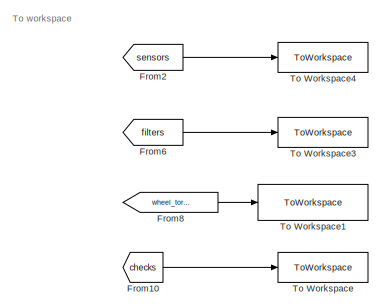
[diagram: root canvas - part 1/3, top right region]
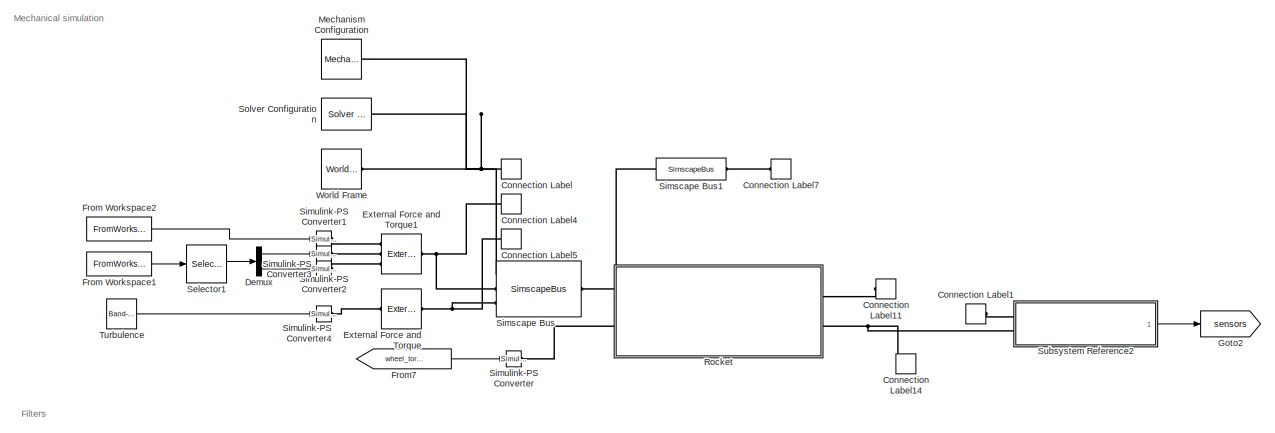
[diagram: root canvas - part 2/3, full width, top band]
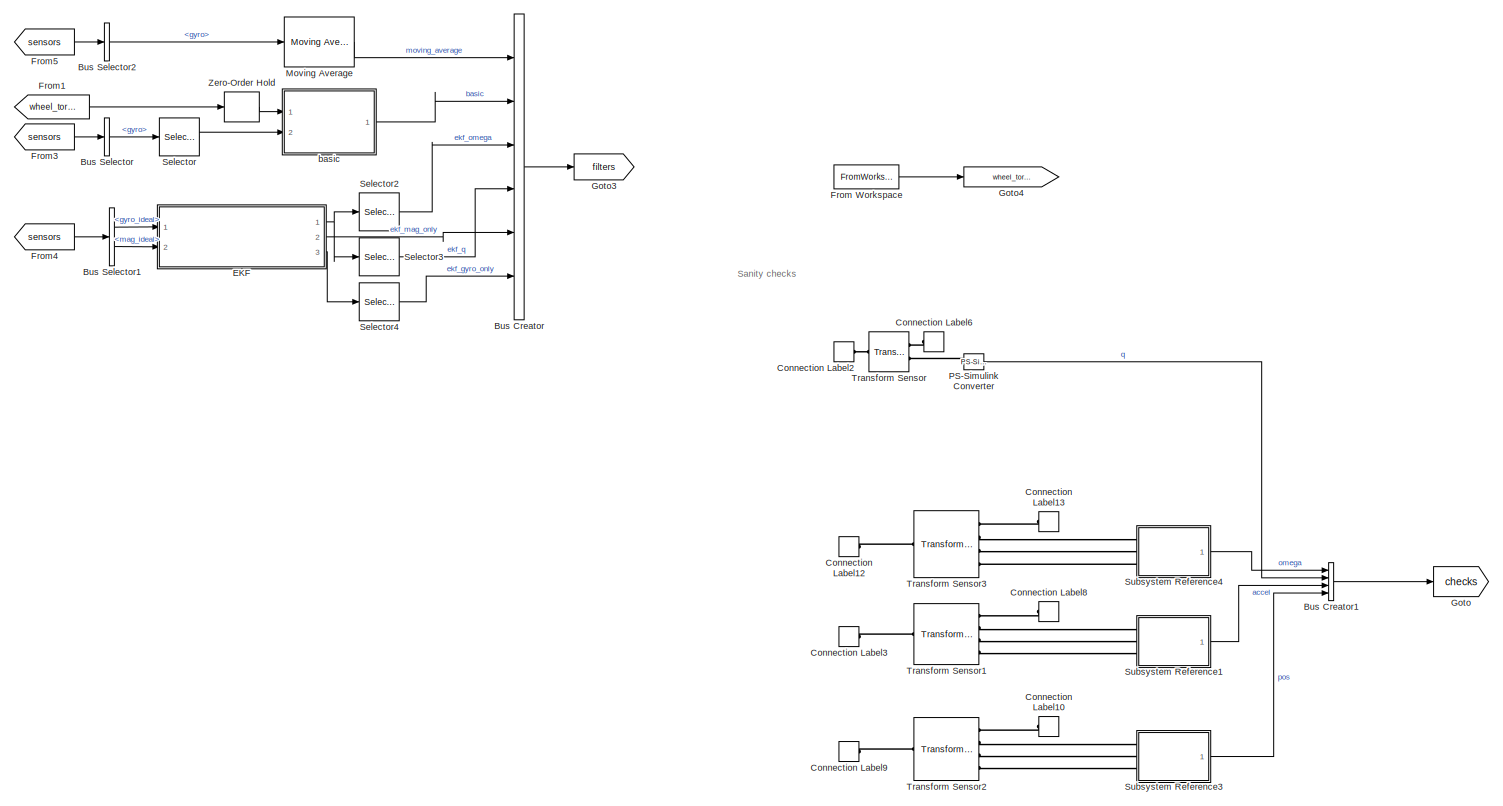
[diagram: root canvas - part 3/3, full width, bottom band]
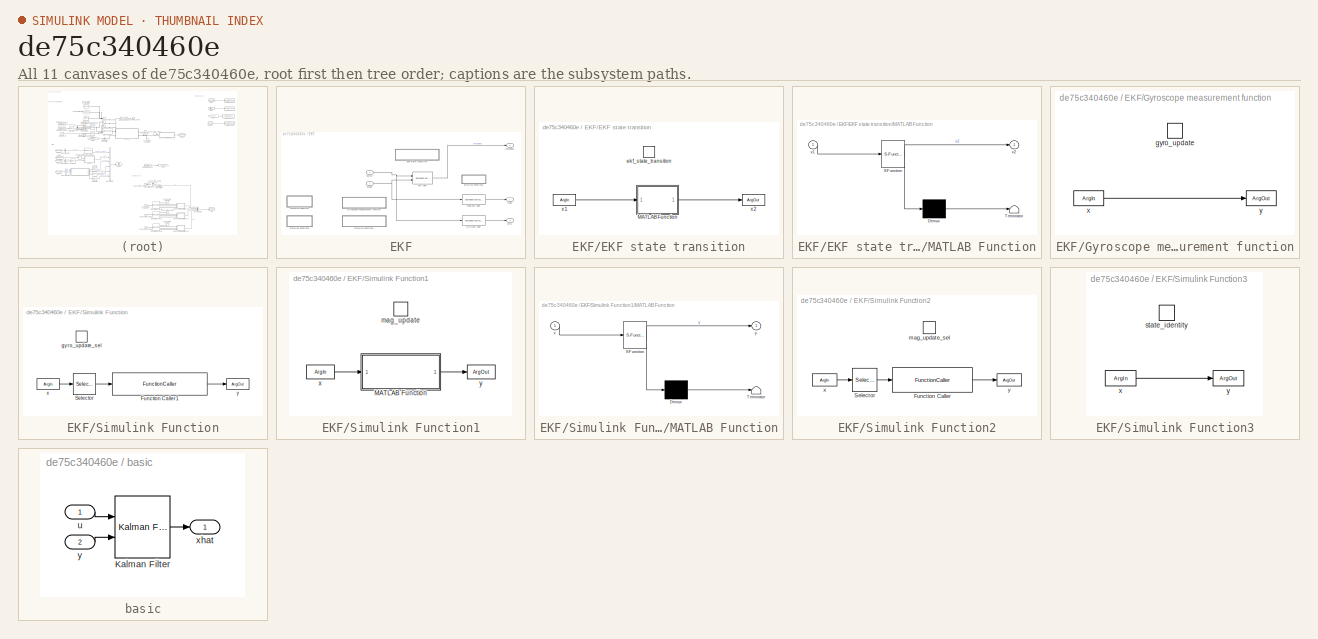
[diagram: thumbnail index - all 11 canvases of the model, root first then tree order]
MODEL slx_de75c340460e
KIND model
CONFIG AbsTol = auto
CONFIG EnableMultiTasking = off
CONFIG FixedStep = dt
CONFIG MaxStep = auto
CONFIG MinStep = auto
CONFIG RelTol = 1e-3
CONFIG SampleTimeConstraint = Unconstrained
CONFIG SolverName = FixedStepAuto
CONFIG StartTime = simtime(1)
CONFIG StopTime = simtime(end)
BLOCK [BusCreator] Bus Creator
  DisplayOption = bar
  InheritFromInputs = on
  Inputs = 6
  Ports = [6, 1]
BLOCK [BusCreator] Bus Creator1
  DisplayOption = bar
  InheritFromInputs = on
  Inputs = 4
  Ports = [4, 1]
BLOCK [BusSelector] Bus Selector
  OutputSignals = gyro
  Ports = [1, 1]
BLOCK [BusSelector] Bus Selector1
  OutputSignals = gyro_ideal,mag_ideal
  Ports = [1, 2]
BLOCK [BusSelector] Bus Selector2
  OutputSignals = gyro
  Ports = [1, 1]
BLOCK [ConnectionLabel] Connection Label
  Label = base
  Ports = [0, 0, 0, 0, 0, 1]
BLOCK [ConnectionLabel] Connection Label1
  Label = base
  NameLocation = top
  Ports = [0, 0, 0, 0, 0, 1]
BLOCK [ConnectionLabel] Connection Label10
  Label = translating
  Ports = [0, 0, 0, 0, 0, 1]
BLOCK [ConnectionLabel] Connection Label11
  Label = wheel
  Ports = [0, 0, 0, 0, 0, 1]
BLOCK [ConnectionLabel] Connection Label12
  Label = translating
  NameLocation = top
  Ports = [0, 0, 0, 0, 0, 1]
BLOCK [ConnectionLabel] Connection Label13
  Label = rotating_xy
  Ports = [0, 0, 0, 0, 0, 1]
BLOCK [ConnectionLabel] Connection Label14
  Label = sensor
  Ports = [0, 0, 0, 0, 0, 1]
BLOCK [ConnectionLabel] Connection Label2
  Label = base
  NameLocation = top
  Ports = [0, 0, 0, 0, 0, 1]
BLOCK [ConnectionLabel] Connection Label3
  Label = base
  NameLocation = top
  Ports = [0, 0, 0, 0, 0, 1]
BLOCK [ConnectionLabel] Connection Label4
  Label = rotating_xy
  Ports = [0, 0, 0, 0, 0, 1]
BLOCK [ConnectionLabel] Connection Label5
  Label = rotating_xyz
  Ports = [0, 0, 0, 0, 0, 1]
BLOCK [ConnectionLabel] Connection Label6
  Label = sensor
  Ports = [0, 0, 0, 0, 0, 1]
BLOCK [ConnectionLabel] Connection Label7
  Label = translating
  Ports = [0, 0, 0, 0, 0, 1]
BLOCK [ConnectionLabel] Connection Label8
  Label = translating
  Ports = [0, 0, 0, 0, 0, 1]
BLOCK [ConnectionLabel] Connection Label9
  Label = base
  NameLocation = top
  Ports = [0, 0, 0, 0, 0, 1]
BLOCK [Demux] Demux
  Outputs = 2
  Ports = [1, 2]
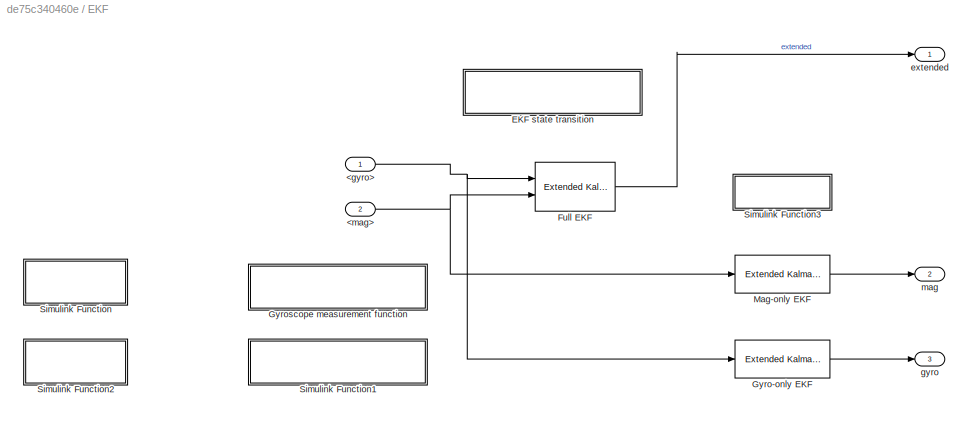
BLOCK [SubSystem] EKF
  Ports = [2, 3]
  RequestExecContextInheritance = off
BLOCK [Inport] EKF/<gyro>
BLOCK [Inport] EKF/<mag>
  Port = 2
BLOCK [SubSystem] EKF/EKF state transition
  Ports = [0, 0, 0, 1]
  RequestExecContextInheritance = off
  TreatAsAtomicUnit = on
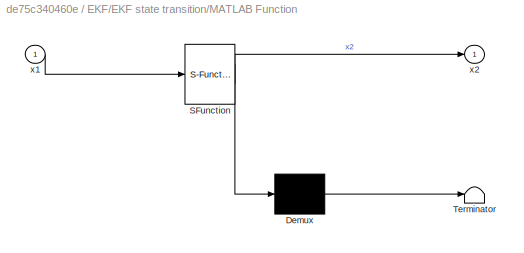
BLOCK [SubSystem] EKF/EKF state transition/MATLAB Function
  ErrorFcn = Stateflow.Translate.translate
  PermitHierarchicalResolution = ExplicitOnly
  Ports = [1, 1]
  RequestExecContextInheritance = off
  SFBlockType = MATLAB Function
  TreatAsAtomicUnit = on
BLOCK [Demux] EKF/EKF state transition/MATLAB Function/ Demux 
  Outputs = 1
  Ports = [1, 1]
BLOCK [S-Function] EKF/EKF state transition/MATLAB Function/ SFunction 
  EnableBusSupport = on
  FunctionName = sf_sfun
  Parameters = dt
  PortCounts = [1 2]
  Ports = [1, 2]
  SFcnIsStateOwnerBlock = off
  SFunctionDeploymentMode = off
  Tag = Stateflow S-Function 2
BLOCK [Terminator] EKF/EKF state transition/MATLAB Function/ Terminator 
BLOCK [Inport] EKF/EKF state transition/MATLAB Function/x1
BLOCK [Outport] EKF/EKF state transition/MATLAB Function/x2
BLOCK [TriggerPort] EKF/EKF state transition/ekf_state_transition
  FunctionName = ekf_state_transition
  FunctionVisibility = scoped
  IsSimulinkFunction = on
  Ports = []
  StatesWhenEnabling = held
  TriggerType = function-call
  VariantControl = (inherit)
BLOCK [ArgIn] EKF/EKF state transition/x1
  ArgumentName = x1
  DisableCoverage = on
  PortDimensions = 7
BLOCK [ArgOut] EKF/EKF state transition/x2
  ArgumentName = x2
  DisableCoverage = on
  PortDimensions = 7
BLOCK [Reference] EKF/Full EKF  REF=sharedTrackingLibrary/Extended Kalman Filter
  Ports = [2, 1]
  SourceBlock = sharedTrackingLibrary/Extended Kalman Filter
  SourceProductBaseCode = TF,AE,PW,CT,DR,ID,LP,NV,AR,RO,RR,UV,VE
  SourceType = Extended Kalman Filter
BLOCK [Reference] EKF/Gyro-only EKF  REF=sharedTrackingLibrary/Extended Kalman Filter
  Ports = [1, 1]
  SourceBlock = sharedTrackingLibrary/Extended Kalman Filter
  SourceProductBaseCode = TF,AE,PW,CT,DR,ID,LP,NV,AR,RO,RR,UV,VE
  SourceType = Extended Kalman Filter
BLOCK [SubSystem] EKF/Gyroscope measurement function
  Ports = [0, 0, 0, 1]
  RequestExecContextInheritance = off
  TreatAsAtomicUnit = on
BLOCK [TriggerPort] EKF/Gyroscope measurement function/gyro_update
  FunctionName = gyro_update
  FunctionVisibility = scoped
  IsSimulinkFunction = on
  Ports = []
  StatesWhenEnabling = held
  TriggerType = function-call
  VariantControl = (inherit)
BLOCK [ArgIn] EKF/Gyroscope measurement function/x
  ArgumentName = x
  DisableCoverage = on
  PortDimensions = 3
BLOCK [ArgOut] EKF/Gyroscope measurement function/y
  ArgumentName = y
  DisableCoverage = on
  PortDimensions = 3
BLOCK [Reference] EKF/Mag-only EKF  REF=sharedTrackingLibrary/Extended Kalman Filter
  Ports = [1, 1]
  SourceBlock = sharedTrackingLibrary/Extended Kalman Filter
  SourceProductBaseCode = TF,AE,PW,CT,DR,ID,LP,NV,AR,RO,RR,UV,VE
  SourceType = Extended Kalman Filter
BLOCK [SubSystem] EKF/Simulink Function
  Ports = [0, 0, 0, 1]
  RequestExecContextInheritance = off
  TreatAsAtomicUnit = on
BLOCK [FunctionCaller] EKF/Simulink Function/Function Caller1
  FunctionPrototype = y = EKF.gyro_update(x)
  InputArgumentSpecifications = <Enter example>
  OutputArgumentSpecifications = <Enter example>
  Ports = [1, 1]
BLOCK [Selector] EKF/Simulink Function/Selector
  IndexOptions = Index vector (dialog)
  Indices = 1:3
  InputPortWidth = 7
  OutputSizes = 1
  Ports = [1, 1]
BLOCK [TriggerPort] EKF/Simulink Function/gyro_update_sel
  FunctionName = gyro_update_sel
  FunctionVisibility = scoped
  IsSimulinkFunction = on
  Ports = []
  StatesWhenEnabling = held
  TriggerType = function-call
  VariantControl = (inherit)
BLOCK [ArgIn] EKF/Simulink Function/x
  ArgumentName = x
  DisableCoverage = on
  PortDimensions = 7
BLOCK [ArgOut] EKF/Simulink Function/y
  ArgumentName = y
  DisableCoverage = on
  PortDimensions = 3
BLOCK [SubSystem] EKF/Simulink Function1
  Ports = [0, 0, 0, 1]
  RequestExecContextInheritance = off
  TreatAsAtomicUnit = on
BLOCK [SubSystem] EKF/Simulink Function1/MATLAB Function
  ErrorFcn = Stateflow.Translate.translate
  PermitHierarchicalResolution = ExplicitOnly
  Ports = [1, 1]
  RequestExecContextInheritance = off
  SFBlockType = MATLAB Function
  TreatAsAtomicUnit = on
BLOCK [Demux] EKF/Simulink Function1/MATLAB Function/ Demux 
  Outputs = 1
  Ports = [1, 1]
BLOCK [S-Function] EKF/Simulink Function1/MATLAB Function/ SFunction 
  EnableBusSupport = on
  FunctionName = sf_sfun
  Parameters = B0
  PortCounts = [1 2]
  Ports = [1, 2]
  SFcnIsStateOwnerBlock = off
  SFunctionDeploymentMode = off
  Tag = Stateflow S-Function 4
BLOCK [Terminator] EKF/Simulink Function1/MATLAB Function/ Terminator 
BLOCK [Inport] EKF/Simulink Function1/MATLAB Function/x
BLOCK [Outport] EKF/Simulink Function1/MATLAB Function/y
BLOCK [TriggerPort] EKF/Simulink Function1/mag_update
  FunctionName = mag_update
  FunctionVisibility = scoped
  IsSimulinkFunction = on
  Ports = []
  StatesWhenEnabling = held
  TriggerType = function-call
  VariantControl = (inherit)
BLOCK [ArgIn] EKF/Simulink Function1/x
  ArgumentName = x
  DisableCoverage = on
  PortDimensions = 4
BLOCK [ArgOut] EKF/Simulink Function1/y
  ArgumentName = y
  DisableCoverage = on
  PortDimensions = 3
BLOCK [SubSystem] EKF/Simulink Function2
  Ports = [0, 0, 0, 1]
  RequestExecContextInheritance = off
  TreatAsAtomicUnit = on
BLOCK [FunctionCaller] EKF/Simulink Function2/Function Caller
  FunctionPrototype = y = EKF.mag_update(x)
  InputArgumentSpecifications = <Enter example>
  OutputArgumentSpecifications = <Enter example>
  Ports = [1, 1]
BLOCK [Selector] EKF/Simulink Function2/Selector
  IndexOptions = Index vector (dialog)
  Indices = 4:7
  InputPortWidth = 7
  OutputSizes = 1
  Ports = [1, 1]
BLOCK [TriggerPort] EKF/Simulink Function2/mag_update_sel
  FunctionName = mag_update_sel
  FunctionVisibility = scoped
  IsSimulinkFunction = on
  Ports = []
  StatesWhenEnabling = held
  TriggerType = function-call
  VariantControl = (inherit)
BLOCK [ArgIn] EKF/Simulink Function2/x
  ArgumentName = x
  DisableCoverage = on
  PortDimensions = 7
BLOCK [ArgOut] EKF/Simulink Function2/y
  ArgumentName = y
  DisableCoverage = on
  PortDimensions = 3
BLOCK [SubSystem] EKF/Simulink Function3
  Ports = [0, 0, 0, 1]
  RequestExecContextInheritance = off
  TreatAsAtomicUnit = on
BLOCK [TriggerPort] EKF/Simulink Function3/state_identity
  FunctionName = state_identity
  FunctionVisibility = scoped
  IsSimulinkFunction = on
  Ports = []
  StatesWhenEnabling = held
  TriggerType = function-call
  VariantControl = (inherit)
BLOCK [ArgIn] EKF/Simulink Function3/x
  ArgumentName = x
  DisableCoverage = on
  PortDimensions = 4
BLOCK [ArgOut] EKF/Simulink Function3/y
  ArgumentName = y
  DisableCoverage = on
  PortDimensions = 4
BLOCK [Outport] EKF/extended
BLOCK [Outport] EKF/gyro
  Port = 3
BLOCK [Outport] EKF/mag
  Port = 2
BLOCK [Reference] External Force and Torque  REF=sm_lib/Forces and
Torques/External Force
and Torque
  Ports = [0, 0, 0, 0, 0, 1, 1]
  SourceBlock = sm_lib/Forces and\nTorques/External Force\nand Torque
  SourceProductBaseCode = MS
  SourceType = External Force\nand Torque
BLOCK [Reference] External Force and Torque1  REF=sm_lib/Forces and
Torques/External Force
and Torque
  Ports = [0, 0, 0, 0, 0, 3, 1]
  SourceBlock = sm_lib/Forces and\nTorques/External Force\nand Torque
  SourceProductBaseCode = MS
  SourceType = External Force\nand Torque
BLOCK [FromWorkspace] From Workspace
  VariableName = torque_in
BLOCK [FromWorkspace] From Workspace1
  OutputAfterFinalValue = Setting to zero
  VariableName = moment_in
BLOCK [FromWorkspace] From Workspace2
  OutputAfterFinalValue = Setting to zero
  VariableName = force_in
BLOCK [From] From1
  GotoTag = wheel_torque
BLOCK [From] From10
  GotoTag = checks
BLOCK [From] From2
  GotoTag = sensors
BLOCK [From] From3
  GotoTag = sensors
BLOCK [From] From4
  GotoTag = sensors
BLOCK [From] From5
  GotoTag = sensors
BLOCK [From] From6
  GotoTag = filters
BLOCK [From] From7
  GotoTag = wheel_torque
BLOCK [From] From8
  GotoTag = wheel_torque
BLOCK [Goto] Goto
  GotoTag = checks
BLOCK [Goto] Goto2
  GotoTag = sensors
BLOCK [Goto] Goto3
  GotoTag = filters
BLOCK [Goto] Goto4
  GotoTag = wheel_torque
BLOCK [Reference] Mechanism Configuration  REF=sm_lib/Utilities/Mechanism
Configuration
  Ports = [0, 0, 0, 0, 0, 0, 1]
  SourceBlock = sm_lib/Utilities/Mechanism\nConfiguration
  SourceProductBaseCode = MS
  SourceType = Mechanism\nConfiguration
BLOCK [Reference] Moving Average  REF=eeGeneralControl/Moving Average
  Ports = [1, 1]
  SourceBlock = eeGeneralControl/Moving Average
  SourceProductBaseCode = PS
  SourceType = Moving Average
BLOCK [Reference] PS-Simulink Converter  REF=nesl_utility/PS-Simulink
Converter
  Ports = [0, 1, 0, 0, 0, 1]
  SourceBlock = nesl_utility/PS-Simulink\nConverter
  SourceProductBaseCode = SS,PW,VE
  SourceType = PS-Simulink\nConverter
BLOCK [SubSystem] Rocket
  CG = 161
  I_W = I_W
  Ix_T = I_T(2)
  Iz_T = I_T(3)
  L_R = 322
  M_T = M_T
  M_W = 0
  OMEGA0 = omega_0
  Ports = [0, 0, 0, 0, 0, 2, 2]
  ReferencedSubsystem = rocket
  RequestExecContextInheritance = off
  THETA0 = theta_0
  V0 = v_0
  X0 = x_0
  X_W = 87.6
  tilt = 0
BLOCK [Selector] Selector
  IndexOptions = Index vector (dialog)
  Indices = 3
  InputPortWidth = 3
  OutputSizes = 1
  Ports = [1, 1]
BLOCK [Selector] Selector1
  IndexOptions = Index vector (dialog)
  Indices = [1 2]
  InputPortWidth = 3
  OutputSizes = 1
  Ports = [1, 1]
BLOCK [Selector] Selector2
  IndexOptions = Index vector (dialog)
  Indices = 1:3
  InputPortWidth = 7
  OutputSizes = 1
  Ports = [1, 1]
BLOCK [Selector] Selector3
  IndexOptions = Index vector (dialog)
  Indices = 4:7
  InputPortWidth = 7
  OutputSizes = 1
  Ports = [1, 1]
BLOCK [Selector] Selector4
  IndexOptions = Index vector (dialog)
  Indices = 4:7
  InputPortWidth = 7
  OutputSizes = 1
  Ports = [1, 1]
BLOCK [SimscapeBus] Simscape Bus
  HierarchyStrings = base;rotating_xy;rotating_xyz
  Ports = [0, 0, 0, 0, 0, 3, 1]
BLOCK [SimscapeBus] Simscape Bus1
  HierarchyStrings = translating
  NameLocation = top
  Ports = [0, 0, 0, 0, 0, 1, 1]
BLOCK [Reference] Simulink-PS Converter  REF=nesl_utility/Simulink-PS
Converter
  Ports = [1, 0, 0, 0, 0, 0, 1]
  SourceBlock = nesl_utility/Simulink-PS\nConverter
  SourceProductBaseCode = SS,PW,VE
  SourceType = Simulink-PS\nConverter
BLOCK [Reference] Simulink-PS Converter1  REF=nesl_utility/Simulink-PS
Converter
  Ports = [1, 0, 0, 0, 0, 0, 1]
  SourceBlock = nesl_utility/Simulink-PS\nConverter
  SourceProductBaseCode = SS,PW,VE
  SourceType = Simulink-PS\nConverter
BLOCK [Reference] Simulink-PS Converter2  REF=nesl_utility/Simulink-PS
Converter
  Ports = [1, 0, 0, 0, 0, 0, 1]
  SourceBlock = nesl_utility/Simulink-PS\nConverter
  SourceProductBaseCode = SS,PW,VE
  SourceType = Simulink-PS\nConverter
BLOCK [Reference] Simulink-PS Converter3  REF=nesl_utility/Simulink-PS
Converter
  Ports = [1, 0, 0, 0, 0, 0, 1]
  SourceBlock = nesl_utility/Simulink-PS\nConverter
  SourceProductBaseCode = SS,PW,VE
  SourceType = Simulink-PS\nConverter
BLOCK [Reference] Simulink-PS Converter4  REF=nesl_utility/Simulink-PS
Converter
  Ports = [1, 0, 0, 0, 0, 0, 1]
  SourceBlock = nesl_utility/Simulink-PS\nConverter
  SourceProductBaseCode = SS,PW,VE
  SourceType = Simulink-PS\nConverter
BLOCK [Reference] Solver Configuration  REF=nesl_utility/Solver
Configuration
  Ports = [0, 0, 0, 0, 0, 0, 1]
  SourceBlock = nesl_utility/Solver\nConfiguration
  SourceProductBaseCode = SS,PW,VE
  SourceType = Solver\nConfiguration
BLOCK [SubSystem] Subsystem Reference1
  Ports = [0, 1, 0, 0, 0, 3]
  ReferencedSubsystem = PS_Simulink_3x
  RequestExecContextInheritance = off
  Unit = m/s^2
BLOCK [SubSystem] Subsystem Reference2
  B0 = mag_field_0
  Ports = [0, 1, 0, 0, 0, 2]
  ReferencedSubsystem = sensors
  RequestExecContextInheritance = off
  dt = dt
  ra = accel_rms
  rg = gyro_rms
  rm = mag_rms
  rtg = gyro_drift_rms
BLOCK [SubSystem] Subsystem Reference3
  Ports = [0, 1, 0, 0, 0, 3]
  ReferencedSubsystem = PS_Simulink_3x
  RequestExecContextInheritance = off
  Unit = m
BLOCK [SubSystem] Subsystem Reference4
  Ports = [0, 1, 0, 0, 0, 3]
  ReferencedSubsystem = PS_Simulink_3x
  RequestExecContextInheritance = off
  Unit = rad/s
BLOCK [ToWorkspace] To Workspace
  FixptAsFi = on
  MaxDataPoints = inf
  Ports = [1]
  SampleTime = -1
  SaveFormat = Timeseries
  VariableName = checks
BLOCK [ToWorkspace] To Workspace1
  FixptAsFi = on
  MaxDataPoints = inf
  NameLocation = top
  Ports = [1]
  SampleTime = -1
  SaveFormat = Timeseries
  VariableName = wheel_torque
BLOCK [ToWorkspace] To Workspace3
  FixptAsFi = on
  MaxDataPoints = inf
  NameLocation = top
  Ports = [1]
  SampleTime = -1
  SaveFormat = Timeseries
  VariableName = filters
BLOCK [ToWorkspace] To Workspace4
  FixptAsFi = on
  MaxDataPoints = inf
  Ports = [1]
  SampleTime = -1
  SaveFormat = Timeseries
  VariableName = sensors
BLOCK [Reference] Transform Sensor  REF=sm_lib/Frames and
Transforms/Transform
Sensor
  Ports = [0, 0, 0, 0, 0, 1, 2]
  SourceBlock = sm_lib/Frames and\nTransforms/Transform\nSensor
  SourceProductBaseCode = MS
  SourceType = Transform\nSensor
BLOCK [Reference] Transform Sensor1  REF=sm_lib/Frames and
Transforms/Transform
Sensor
  Ports = [0, 0, 0, 0, 0, 1, 4]
  SourceBlock = sm_lib/Frames and\nTransforms/Transform\nSensor
  SourceProductBaseCode = MS
  SourceType = Transform\nSensor
BLOCK [Reference] Transform Sensor2  REF=sm_lib/Frames and
Transforms/Transform
Sensor
  Ports = [0, 0, 0, 0, 0, 1, 4]
  SourceBlock = sm_lib/Frames and\nTransforms/Transform\nSensor
  SourceProductBaseCode = MS
  SourceType = Transform\nSensor
BLOCK [Reference] Transform Sensor3  REF=sm_lib/Frames and
Transforms/Transform
Sensor
  Ports = [0, 0, 0, 0, 0, 1, 4]
  SourceBlock = sm_lib/Frames and\nTransforms/Transform\nSensor
  SourceProductBaseCode = MS
  SourceType = Transform\nSensor
BLOCK [Reference] Turbulence  REF=simulink/Sources/Band-Limited
White Noise
  Ports = [0, 1]
  SourceBlock = simulink/Sources/Band-Limited\nWhite Noise
  SourceProductBaseCode = SL
  SourceType = Band-Limited White Noise.
BLOCK [Reference] World Frame  REF=sm_lib/Frames and
Transforms/World Frame
  Ports = [0, 0, 0, 0, 0, 0, 1]
  SourceBlock = sm_lib/Frames and\nTransforms/World Frame
  SourceProductBaseCode = MS
  SourceType = World Frame
BLOCK [ZeroOrderHold] Zero-Order Hold
  SampleTime = dt
BLOCK [SubSystem] basic
  Ports = [2, 1]
  RequestExecContextInheritance = off
BLOCK [Reference] basic/Kalman Filter  REF=ctrlSharedLib/Kalman Filter
  Ports = [2, 1]
  SourceBlock = ctrlSharedLib/Kalman Filter
  SourceProductBaseCode = CT,ID
  SourceType = ctrlKalmanFilter
BLOCK [Inport] basic/u
BLOCK [Outport] basic/xhat
BLOCK [Inport] basic/y
  Port = 2
ANNOTATION (root): Filters
ANNOTATION (root): Mechanical simulation
ANNOTATION (root): Sanity checks
ANNOTATION (root): To workspace
LINE Bus Creator1:1 -> Goto:1
LINE Bus Creator:1 -> Goto3:1
LINE Bus Selector1:1 -> EKF:1
LINE Bus Selector1:2 -> EKF:2
LINE Bus Selector2:1 -> Moving Average:1
LINE Bus Selector:1 -> Selector:1
LINE Demux:1 -> Simulink-PS Converter2:1
LINE Demux:2 -> Simulink-PS Converter3:1
NET EKF/<gyro>:1 -> EKF/Full EKF:1, EKF/Gyro-only EKF:1
NET EKF/<mag>:1 -> EKF/Full EKF:2, EKF/Mag-only EKF:1
LINE EKF/EKF state transition/MATLAB Function:1 -> EKF/EKF state transition/x2:1
LINE EKF/EKF state transition/x1:1 -> EKF/EKF state transition/MATLAB Function:1
LINE EKF/Full EKF:1 -> EKF/extended:1
LINE EKF/Gyro-only EKF:1 -> EKF/gyro:1
LINE EKF/Gyroscope measurement function/x:1 -> EKF/Gyroscope measurement function/y:1
LINE EKF/Mag-only EKF:1 -> EKF/mag:1
LINE EKF/Simulink Function/Function Caller1:1 -> EKF/Simulink Function/y:1
LINE EKF/Simulink Function/Selector:1 -> EKF/Simulink Function/Function Caller1:1
LINE EKF/Simulink Function/x:1 -> EKF/Simulink Function/Selector:1
LINE EKF/Simulink Function1/MATLAB Function:1 -> EKF/Simulink Function1/y:1
LINE EKF/Simulink Function1/x:1 -> EKF/Simulink Function1/MATLAB Function:1
LINE EKF/Simulink Function2/Function Caller:1 -> EKF/Simulink Function2/y:1
LINE EKF/Simulink Function2/Selector:1 -> EKF/Simulink Function2/Function Caller:1
LINE EKF/Simulink Function2/x:1 -> EKF/Simulink Function2/Selector:1
LINE EKF/Simulink Function3/x:1 -> EKF/Simulink Function3/y:1
NET EKF:1 -> Selector2:1, Selector3:1
LINE EKF:2 -> Bus Creator:5
LINE EKF:3 -> Selector4:1
LINE From Workspace1:1 -> Selector1:1
LINE From Workspace2:1 -> Simulink-PS Converter1:1
LINE From Workspace:1 -> Goto4:1
LINE From10:1 -> To Workspace:1
LINE From1:1 -> Zero-Order Hold:1
LINE From2:1 -> To Workspace4:1
LINE From3:1 -> Bus Selector:1
LINE From4:1 -> Bus Selector1:1
LINE From5:1 -> Bus Selector2:1
LINE From6:1 -> To Workspace3:1
LINE From7:1 -> Simulink-PS Converter:1
LINE From8:1 -> To Workspace1:1
LINE Moving Average:1 -> Bus Creator:1
LINE PS-Simulink Converter:1 -> Bus Creator1:2
LINE Selector1:1 -> Demux:1
LINE Selector2:1 -> Bus Creator:3
LINE Selector3:1 -> Bus Creator:4
LINE Selector4:1 -> Bus Creator:6
LINE Selector:1 -> basic:2
LINE Subsystem Reference1:1 -> Bus Creator1:3
LINE Subsystem Reference2:1 -> Goto2:1
LINE Subsystem Reference3:1 -> Bus Creator1:4
LINE Subsystem Reference4:1 -> Bus Creator1:1
LINE Turbulence:1 -> Simulink-PS Converter4:1
LINE Zero-Order Hold:1 -> basic:1
LINE basic/Kalman Filter:1 -> basic/xhat:1
LINE basic/u:1 -> basic/Kalman Filter:1
LINE basic/y:1 -> basic/Kalman Filter:2
LINE basic:1 -> Bus Creator:2
PLINE Connection Label10:LConn1 -- Transform Sensor2:RConn1
PLINE Connection Label11:LConn1 -- Rocket:RConn1
PLINE Connection Label12:LConn1 -- Transform Sensor3:LConn1
PLINE Connection Label13:LConn1 -- Transform Sensor3:RConn1
PNET net1: Connection Label14:LConn1 -- Rocket:RConn2 -- Subsystem Reference2:LConn2
PLINE Connection Label1:LConn1 -- Subsystem Reference2:LConn1
PLINE Connection Label2:LConn1 -- Transform Sensor:LConn1
PLINE Connection Label3:LConn1 -- Transform Sensor1:LConn1
PNET net2: Connection Label4:LConn1 -- External Force and Torque1:RConn1 -- Simscape Bus:LConn2
PNET net3: Connection Label5:LConn1 -- External Force and Torque:RConn1 -- Simscape Bus:LConn3
PLINE Connection Label6:LConn1 -- Transform Sensor:RConn1
PLINE Connection Label7:LConn1 -- Simscape Bus1:LConn1
PLINE Connection Label8:LConn1 -- Transform Sensor1:RConn1
PLINE Connection Label9:LConn1 -- Transform Sensor2:LConn1
PNET net4: Connection Label:LConn1 -- Mechanism Configuration:RConn1 -- Simscape Bus:LConn1 -- Solver Configuration:RConn1 -- World Frame:RConn1
PLINE External Force and Torque1:LConn1 -- Simulink-PS Converter1:RConn1
PLINE External Force and Torque1:LConn2 -- Simulink-PS Converter2:RConn1
PLINE External Force and Torque1:LConn3 -- Simulink-PS Converter3:RConn1
PLINE External Force and Torque:LConn1 -- Simulink-PS Converter4:RConn1
PLINE PS-Simulink Converter:LConn1 -- Transform Sensor:RConn2
PNET net5: Rocket:LConn1 -- Simscape Bus1:RConn1 -- Simscape Bus:RConn1
PLINE Rocket:LConn2 -- Simulink-PS Converter:RConn1
PLINE Subsystem Reference1:LConn1 -- Transform Sensor1:RConn2
PLINE Subsystem Reference1:LConn2 -- Transform Sensor1:RConn3
PLINE Subsystem Reference1:LConn3 -- Transform Sensor1:RConn4
PLINE Subsystem Reference3:LConn1 -- Transform Sensor2:RConn2
PLINE Subsystem Reference3:LConn2 -- Transform Sensor2:RConn3
PLINE Subsystem Reference3:LConn3 -- Transform Sensor2:RConn4
PLINE Subsystem Reference4:LConn1 -- Transform Sensor3:RConn2
PLINE Subsystem Reference4:LConn2 -- Transform Sensor3:RConn3
PLINE Subsystem Reference4:LConn3 -- Transform Sensor3:RConn4
note: NET lines group one-source signal fan-out (src -> all destinations, sorted); 1:1 wires keep LINE; PNET lines group multi-terminal physical nets as a canonical sorted terminal list (undirected conserving connections); 2-terminal nets keep the pairwise PLINE form
CHART EKF/Simulink Function1/MATLAB Function states=1 transitions=1
  STATE_LABEL 'eML_blk_kernel()'
  STATE_LABEL "SCRIPT:\nfunction y = mag_measurement(x, B0)\n    y = rotateframe(quaternion(x'), B0);\nend\n"
CHART EKF/EKF state transition/MATLAB Function states=1 transitions=1
  STATE_LABEL 'eML_blk_kernel()'
  STATE_LABEL "SCRIPT:\nfunction x2 = state(x1, dt)\n    x1 = x1';\n    q_1 = quaternion(x1(4:7)); % orientation quaternion\n\n    q_omega = quaternion([0 x1(1:3)]); % rate quaternion\n    \n\n    q_rate = - 0.5 * q_1 * q_omega; % orientation time-derivative\n    q_2 = q_1 + (dt * q_rate); % update\n\n    \n    x2 = [x1(1:3) compact(q_2)]';\nend"
CHART  states=0 transitions=0
CHART  states=0 transitions=0
